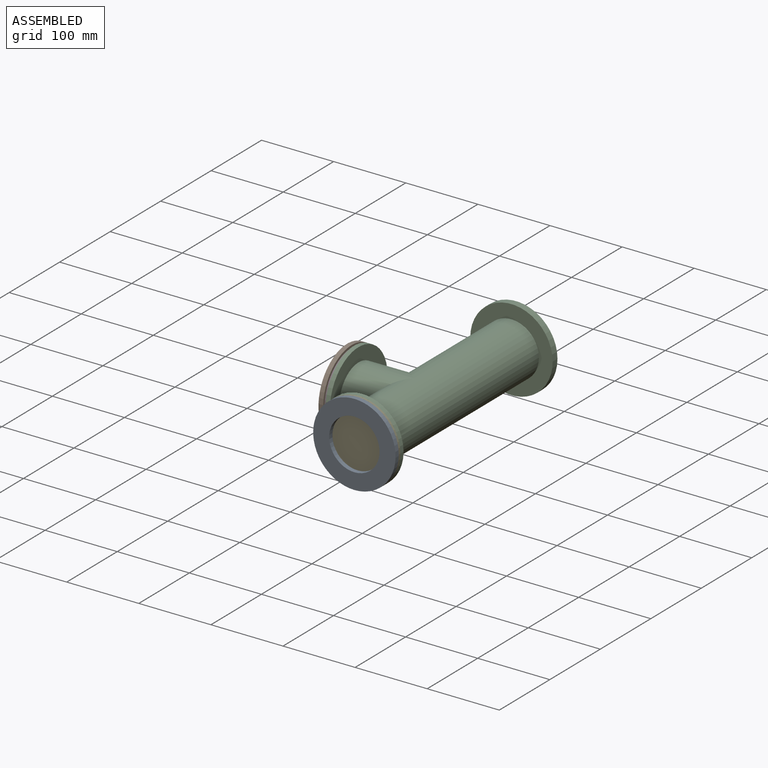
[diagram: assembled view]
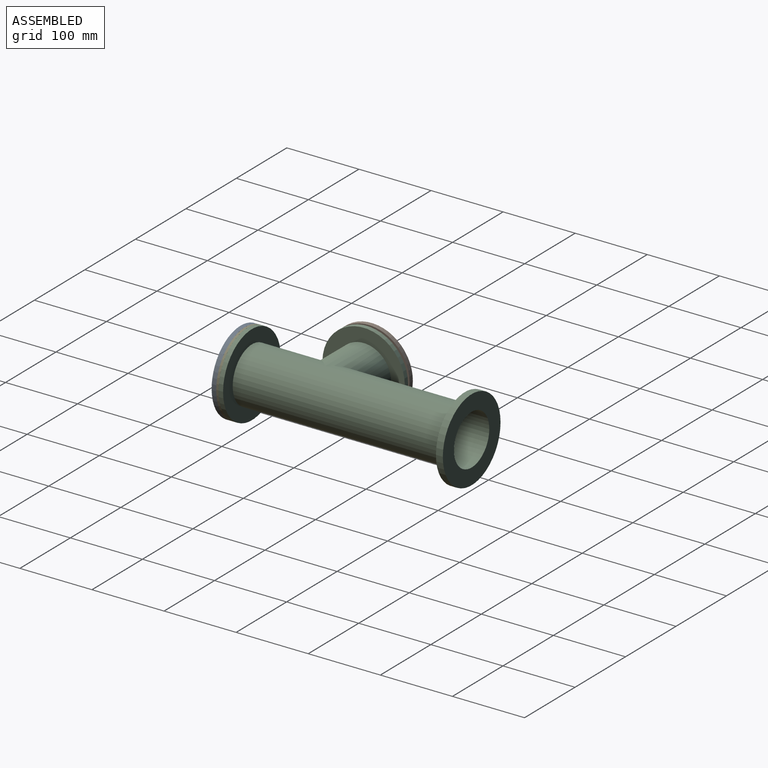
[diagram: assembled view, second angle]
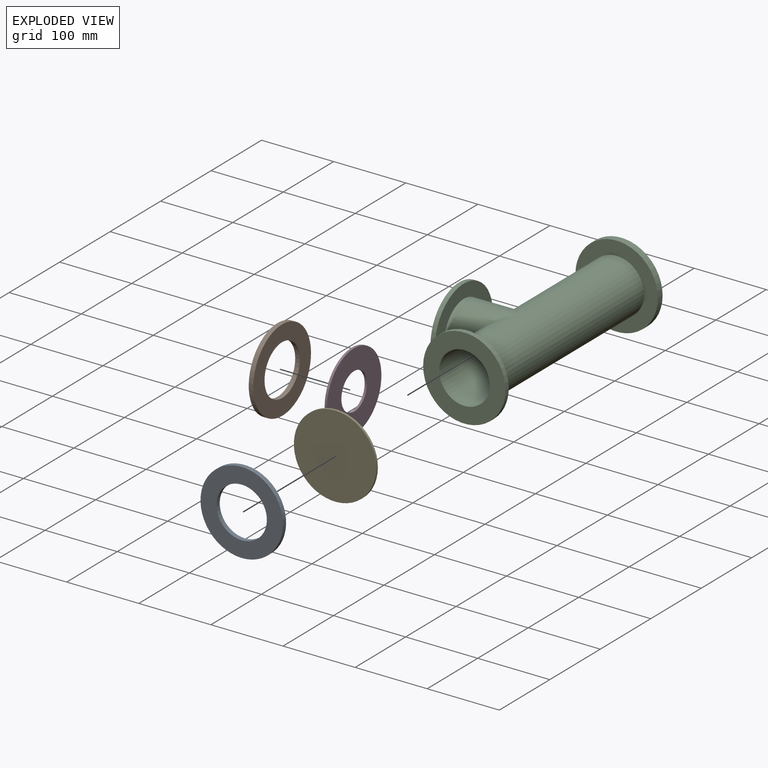
[diagram: exploded view]
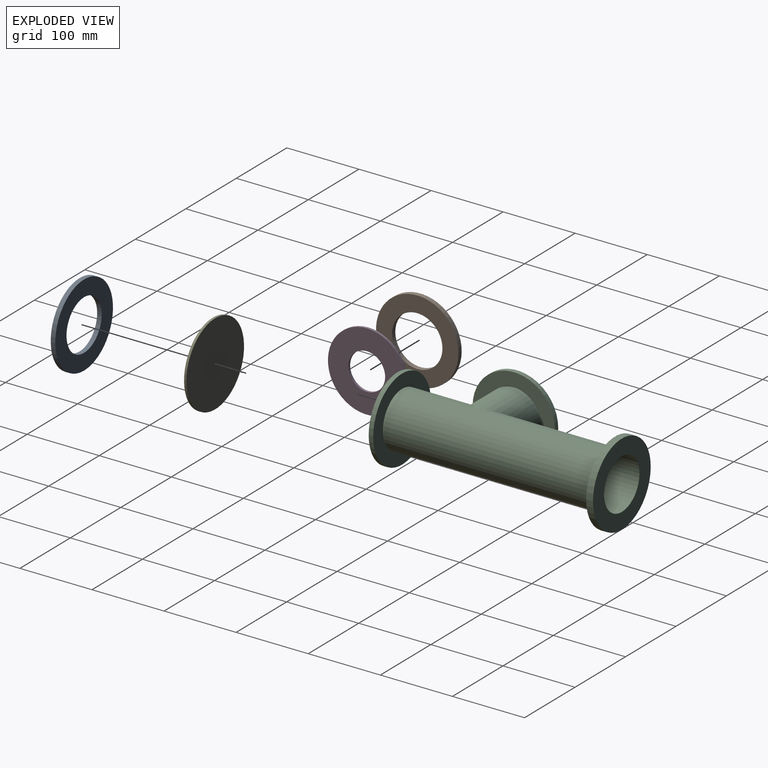
[diagram: exploded view, second angle]
ASSEMBLY  parts=5 mates=9
PART A: 4 faces, bbox 114.3x6.4x114.3 mm
  f0: cylinder r=34.92mm len=69.85mm, axis (0,1,0), area 1393.4mm2, adj f2,f3
  f1: cylinder r=57.15mm len=114.3mm, axis (0,1,0), area 2280.2mm2, adj f2,f3
  f2: plane 114.3x114.3mm, normal (0,-1,0), area 6428.9mm2, adj f0,f1
  f3: plane 114.3x114.3mm, normal (0,1,0), area 6428.9mm2, adj f0,f1
PART B: same geometry as A
PART C: 13 faces, bbox 139.7x114.3x311.2 mm
  f0: cylinder r=34.92mm len=311.15mm, axis (0,0,-1), area 63399.8mm2, adj f4,f6,f11
  f1: cylinder r=38.1mm len=295.28mm, axis (0,0,-1), area 64879.3mm2, adj f3,f5,f12
  f2: cylinder r=57.15mm len=114.3mm, axis (0,0,-1), area 3420.3mm2, adj f3,f4
  f3: plane 114.3x114.3mm, normal (0,0,1), area 5700.5mm2, adj f1,f2
  f4: plane 114.3x114.3mm, normal (0,0,-1), area 6428.9mm2, adj f0,f2
  f5: cylinder r=38.1mm len=76.2mm, axis (-1,0,0), area 12435mm2, adj f1,f9
  f6: cylinder r=34.92mm len=82.55mm, axis (-1,0,0), area 13235.8mm2, adj f0,f8
  f7: cylinder r=57.15mm len=114.3mm, axis (-1,0,0), area 2280.2mm2, adj f8,f9
  f8: plane 114.3x114.3mm, normal (1,0,0), area 6428.9mm2, adj f6,f7
  f9: plane 114.3x114.3mm, normal (-1,0,0), area 5700.5mm2, adj f5,f7
  f10: cylinder r=57.15mm len=114.3mm, axis (0,0,-1), area 2280.2mm2, adj f11,f12
  f11: plane 114.3x114.3mm, normal (0,0,1), area 6428.9mm2, adj f0,f10
  f12: plane 114.3x114.3mm, normal (0,0,-1), area 5700.5mm2, adj f1,f10
PART D: 4 faces, bbox 108x3.2x108 mm
  f0: cylinder r=25.4mm len=50.8mm, axis (0,1,0), area 506.7mm2, adj f2,f3
  f1: cylinder r=53.98mm len=107.95mm, axis (0,1,0), area 1076.8mm2, adj f2,f3
  f2: plane 107.95x107.95mm, normal (0,-1,0), area 7125.6mm2, adj f0,f1
  f3: plane 107.95x107.95mm, normal (0,1,0), area 7125.6mm2, adj f0,f1
PART E: 3 faces, bbox 114.3x114.3x3.2 mm
  f0: cylinder r=57.15mm len=114.3mm, axis (0,0,-1), area 1140.1mm2, adj f1,f2
  f1: plane 114.3x114.3mm, normal (0,0,1), area 10260.8mm2, adj f0
  f2: plane 114.3x114.3mm, normal (0,0,-1), area 10260.8mm2, adj f0
PLACE A rot(axis=(0,-1,0),0.3deg) t=(-66.61,-314.33,-96.38)mm
PLACE B rot(axis=(0.58,-0.58,0.58),120.2deg) t=(-158.68,-203.2,-96.88)mm
PLACE C rot(axis=(0,0.71,-0.71),179.8deg) t=(-66.61,0,-96.38)mm
PLACE D rot(axis=(0.71,0.71,0),179.8deg) t=(-149.15,-203.2,-96.83)mm
PLACE E rot(axis=(1,0,0),90deg) t=(-66.61,-311.15,-96.38)mm
MATE planar C.f2 <-> E.f0  axis (0,-1,0) through (-66.61,-311.15,-96.38)mm
MATE planar B.f1 <-> D.f1  axis (1,0,0.01) through (-152.33,-203.2,-96.84)mm
MATE cylindrical E.f0 <-> A.f1  axis (0,1,0) through (-66.61,-312.74,-96.38)mm
MATE planar E.f0 <-> A.f1  axis (0,-1,0) through (-66.61,-314.33,-96.38)mm
MATE cylindrical C.f0 <-> E.f0  axis (0,1,0) through (-66.61,-311.15,-96.38)mm
MATE cylindrical C.f5 <-> B.f0  axis (1,0,0.01) through (-149.15,-203.2,-96.83)mm
MATE cylindrical C.f5 <-> D.f0  axis (1,0,0.01) through (-149.15,-203.2,-96.83)mm
MATE planar C.f5 <-> D.f1  axis (-1,0,-0.01) through (-149.15,-203.2,-96.83)mm
MATE cylindrical E.f0 <-> C.f2  axis (0,1,0) through (-66.61,-311.15,-96.38)mm
